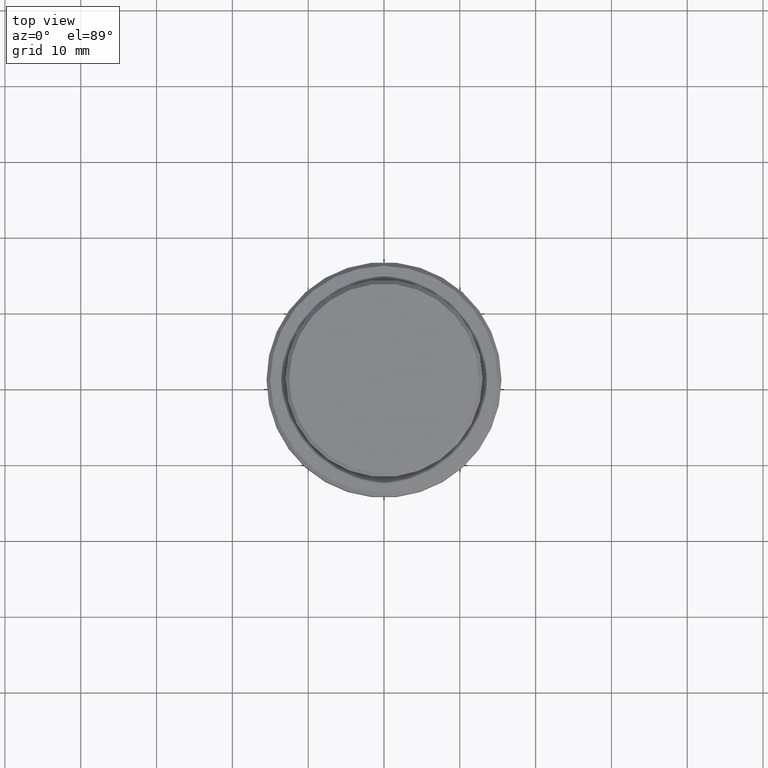
[diagram: clean part render]
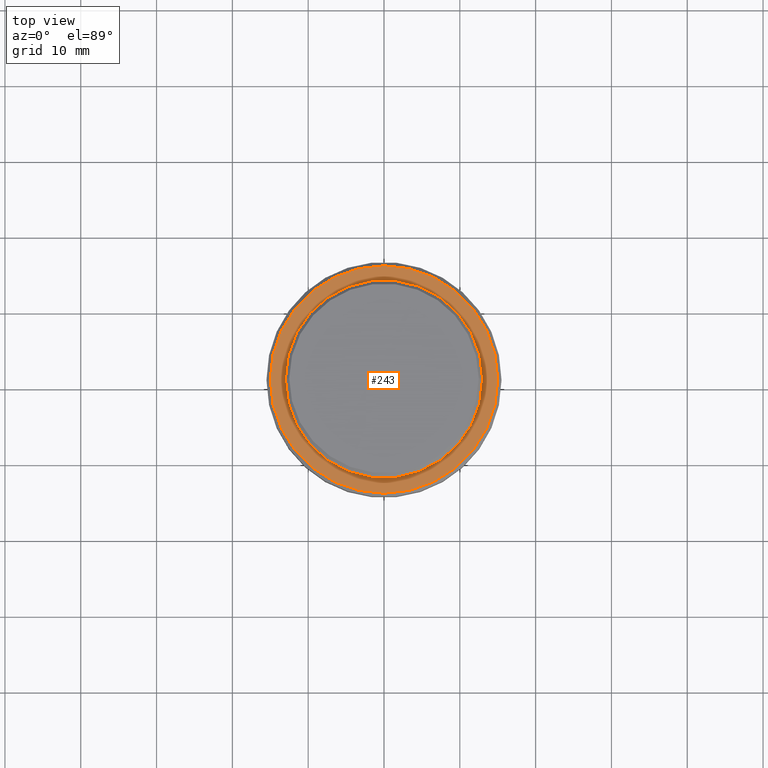
[diagram: same view with one face highlighted and labeled with its STEP entity id]
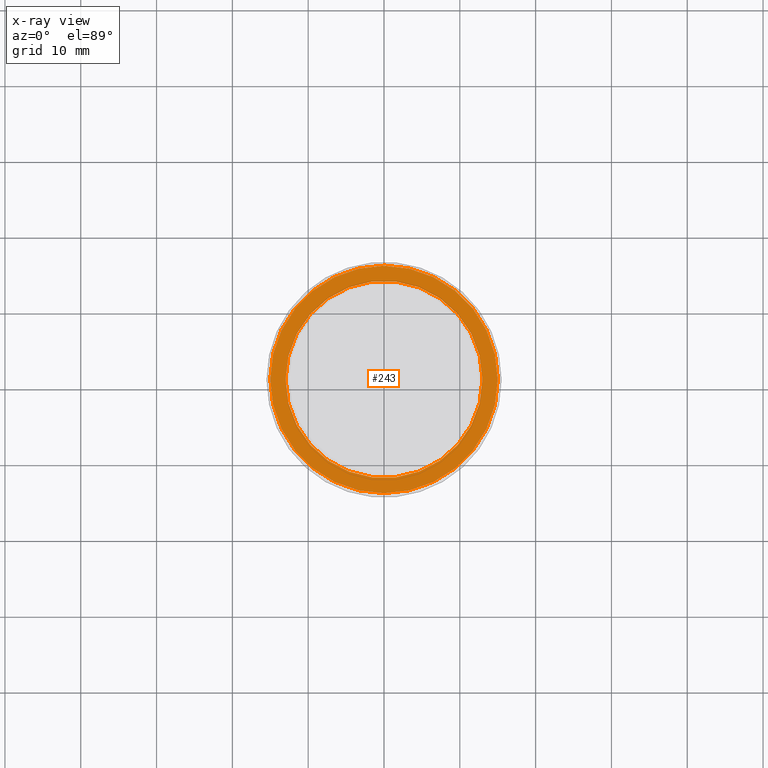
[diagram: x-ray of the same camera — body ghosted, the highlighted face saturated]
A machine part, top view. The second image highlights one B-rep face of the part: STEP entity #243.
The next image is the same camera in x-ray: the body ghosted, the highlighted face saturated — about 0% of this face is hidden behind the body in this view.
In plain terms, the highlighted planar face has unit normal (0, -0, 1).
Its self-contained STEP definition (entity closure, byte-faithful):
#53 = ORIENTED_EDGE ( 'NONE', *, *, #1341, .T. ) ;
#65 = EDGE_CURVE ( 'NONE', #531, #648, #831, .T. ) ;
#100 = AXIS2_PLACEMENT_3D ( 'NONE', #1379, #1350, #703 ) ;
#106 = EDGE_LOOP ( 'NONE', ( #459, #53 ) ) ;
#125 = VERTEX_POINT ( 'NONE', #1116 ) ;
#127 = CIRCLE ( 'NONE', #1012, 12.99999999999999467 ) ;
#131 = DIRECTION ( 'NONE',  ( 0.000000000000000000, 0.000000000000000000, -1.000000000000000000 ) ) ;
#133 = DIRECTION ( 'NONE',  ( -0.000000000000000000, -0.000000000000000000, 1.000000000000000000 ) ) ;
#135 = CARTESIAN_POINT ( 'NONE',  ( 0.000000000000000000, 0.000000000000000000, -9.000000000000001776 ) ) ;
#187 = CIRCLE ( 'NONE', #987, 12.99999999999999467 ) ;
#243 = ADVANCED_FACE ( 'NONE', ( #1047, #497 ), #726, .T. ) ;
#259 = EDGE_CURVE ( 'NONE', #1377, #125, #127, .T. ) ;
#263 = AXIS2_PLACEMENT_3D ( 'NONE', #994, #133, #582 ) ;
#452 = DIRECTION ( 'NONE',  ( 1.000000000000000000, 0.000000000000000000, 0.000000000000000000 ) ) ;
#456 = CARTESIAN_POINT ( 'NONE',  ( -15.00000000000001421, 0.000000000000000000, -9.000000000000001776 ) ) ;
#459 = ORIENTED_EDGE ( 'NONE', *, *, #65, .T. ) ;
#487 = CIRCLE ( 'NONE', #1162, 15.00000000000001421 ) ;
#497 = FACE_BOUND ( 'NONE', #684, .T. ) ;
#531 = VERTEX_POINT ( 'NONE', #456 ) ;
#582 = DIRECTION ( 'NONE',  ( 1.000000000000000000, 0.000000000000000000, 0.000000000000000000 ) ) ;
#648 = VERTEX_POINT ( 'NONE', #1127 ) ;
#684 = EDGE_LOOP ( 'NONE', ( #766, #1305 ) ) ;
#703 = DIRECTION ( 'NONE',  ( 1.000000000000000000, 0.000000000000000000, 0.000000000000000000 ) ) ;
#726 = PLANE ( 'NONE',  #100 ) ;
#766 = ORIENTED_EDGE ( 'NONE', *, *, #1320, .T. ) ;
#831 = CIRCLE ( 'NONE', #263, 15.00000000000001421 ) ;
#930 = DIRECTION ( 'NONE',  ( 1.000000000000000000, 0.000000000000000000, 0.000000000000000000 ) ) ;
#987 = AXIS2_PLACEMENT_3D ( 'NONE', #1108, #131, #452 ) ;
#994 = CARTESIAN_POINT ( 'NONE',  ( 0.000000000000000000, 0.000000000000000000, -9.000000000000001776 ) ) ;
#1002 = CARTESIAN_POINT ( 'NONE',  ( -12.99999999999999467, 1.592040838891558504E-15, -9.000000000000001776 ) ) ;
#1012 = AXIS2_PLACEMENT_3D ( 'NONE', #1135, #1258, #930 ) ;
#1021 = DIRECTION ( 'NONE',  ( -0.000000000000000000, -0.000000000000000000, 1.000000000000000000 ) ) ;
#1047 = FACE_OUTER_BOUND ( 'NONE', #106, .T. ) ;
#1108 = CARTESIAN_POINT ( 'NONE',  ( 0.000000000000000000, 0.000000000000000000, -9.000000000000001776 ) ) ;
#1116 = CARTESIAN_POINT ( 'NONE',  ( 12.99999999999999467, 0.000000000000000000, -9.000000000000001776 ) ) ;
#1117 = DIRECTION ( 'NONE',  ( 1.000000000000000000, 0.000000000000000000, 0.000000000000000000 ) ) ;
#1127 = CARTESIAN_POINT ( 'NONE',  ( 15.00000000000001421, 1.867586368699714559E-15, -9.000000000000001776 ) ) ;
#1135 = CARTESIAN_POINT ( 'NONE',  ( 0.000000000000000000, 0.000000000000000000, -9.000000000000001776 ) ) ;
#1162 = AXIS2_PLACEMENT_3D ( 'NONE', #135, #1021, #1117 ) ;
#1258 = DIRECTION ( 'NONE',  ( 0.000000000000000000, 0.000000000000000000, -1.000000000000000000 ) ) ;
#1305 = ORIENTED_EDGE ( 'NONE', *, *, #259, .T. ) ;
#1320 = EDGE_CURVE ( 'NONE', #125, #1377, #187, .T. ) ;
#1341 = EDGE_CURVE ( 'NONE', #648, #531, #487, .T. ) ;
#1350 = DIRECTION ( 'NONE',  ( 0.000000000000000000, -0.000000000000000000, 1.000000000000000000 ) ) ;
#1377 = VERTEX_POINT ( 'NONE', #1002 ) ;
#1379 = CARTESIAN_POINT ( 'NONE',  ( 0.000000000000000000, 12.49999999999999289, -9.000000000000001776 ) ) ;